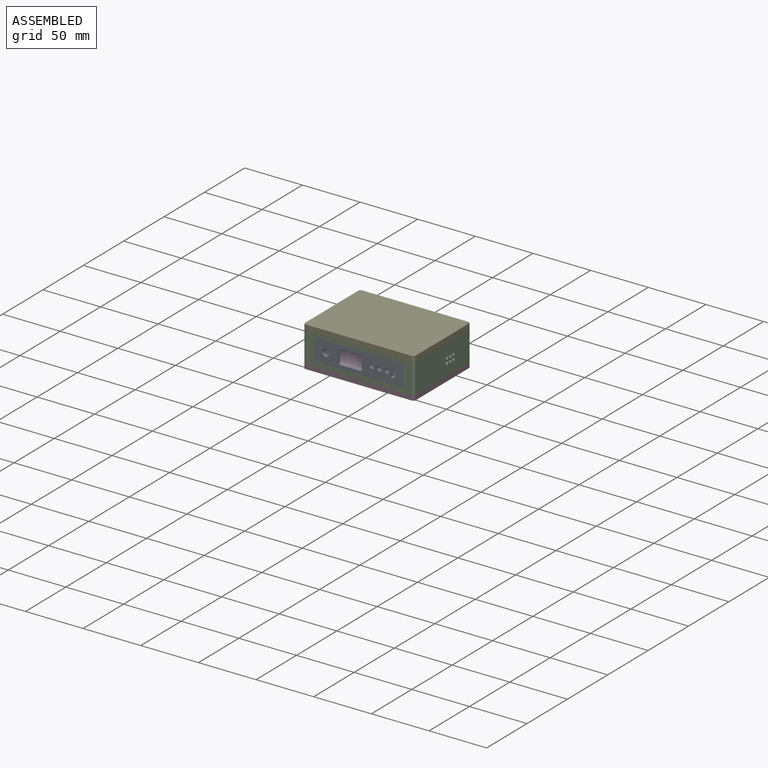
[diagram: assembled view]
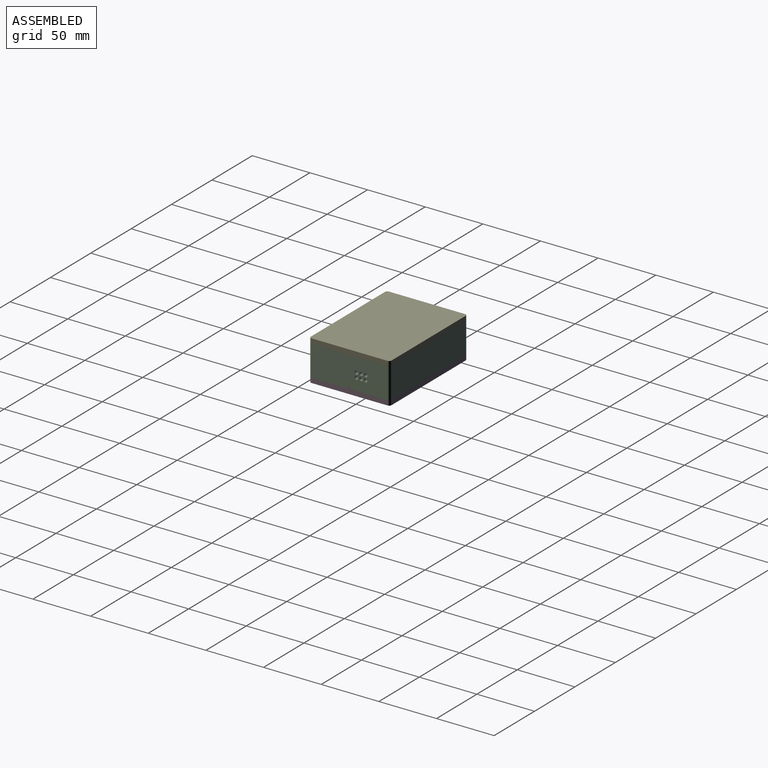
[diagram: assembled view, second angle]
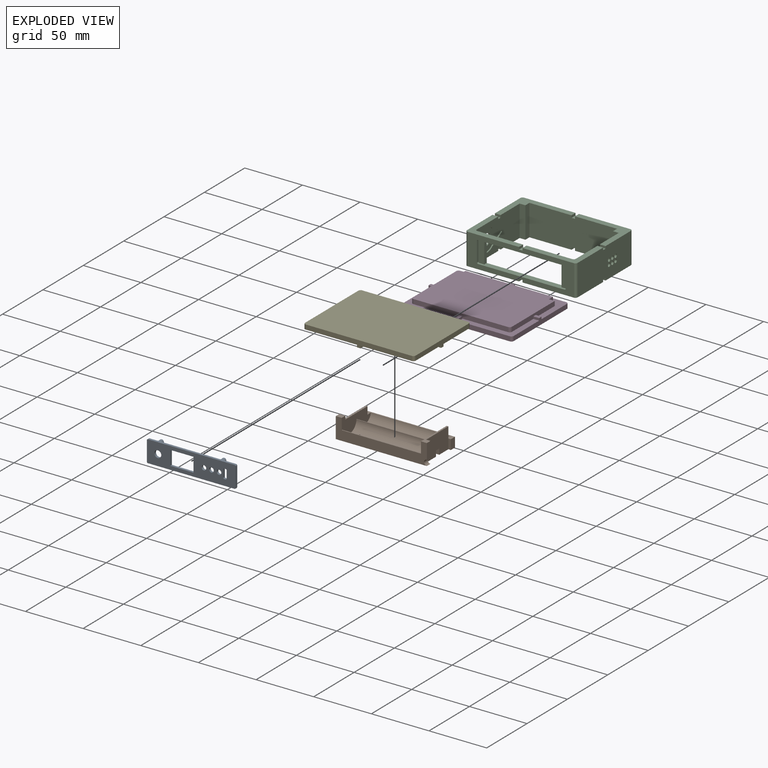
[diagram: exploded view]
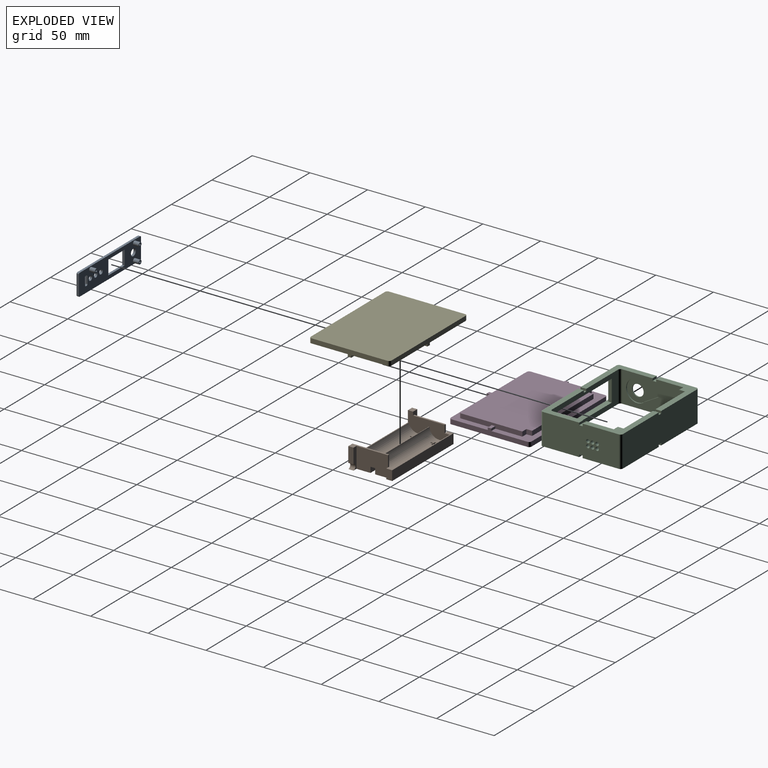
[diagram: exploded view, second angle]
ASSEMBLY  parts=5 mates=4
PART A: 38 faces, bbox 6.9x77x18.8 mm
  f0: plane 75x2mm, normal (0,0,-1), area 150mm2, adj f18,f19,f35,f36
  f1: plane 75x2mm, normal (0,0,1), area 150mm2, adj f18,f19,f34,f37
  f2: cylinder r=1mm len=2mm, axis (-1,0,0), area 3.1mm2, adj f3,f12,f18,f19
  f3: plane 2x1mm, normal (0,0,1), area 2mm2, adj f2,f4,f18,f19
  f4: cylinder r=1mm len=2mm, axis (-1,0,0), area 3.1mm2, adj f3,f5,f18,f19
  f5: plane 6.2x2mm, normal (0,1,0), area 12.4mm2, adj f4,f6,f18,f19
  f6: cylinder r=1mm len=2mm, axis (-1,0,0), area 3.1mm2, adj f5,f7,f18,f19
  f7: plane 2x1mm, normal (0,0,-1), area 2mm2, adj f6,f8,f18,f19
  f8: cylinder r=1mm len=2mm, axis (-1,0,0), area 3.1mm2, adj f7,f12,f18,f19
  f9: plane 12.47x2mm, normal (0,1,0), area 24.9mm2, adj f10,f13,f18,f19
  f10: plane 20.16x2mm, normal (0,0,-1), area 40.3mm2, adj f9,f11,f18,f19
  f11: plane 12.47x2mm, normal (0,-1,0), area 24.9mm2, adj f10,f13,f18,f19
  f12: plane 6.2x2mm, normal (0,-1,0), area 12.4mm2, adj f2,f8,f18,f19
  f13: plane 20.16x2mm, normal (0,0,1), area 40.3mm2, adj f9,f11,f18,f19
  f14: cylinder r=2mm len=4mm, axis (-1,0,0), area 25.1mm2, adj f18,f19
  f15: cylinder r=2mm len=4mm, axis (-1,0,0), area 25.1mm2, adj f18,f19
  f16: cylinder r=2mm len=4mm, axis (-1,0,0), area 25.1mm2, adj f18,f19
  f17: cylinder r=3mm len=6mm, axis (-1,0,0), area 37.7mm2, adj f18,f19
  f18: plane 77x18.75mm, normal (1,0,0), area 1071.2mm2, adj f0,f1,f2,f3,f4,f5,f6,f7
  f19: plane 77x18.75mm, normal (-1,0,0), area 1101.8mm2, adj f0,f1,f2,f3,f4,f5,f6,f7
  f20: cylinder r=0.8mm len=5.9mm, axis (-1,0,0), area 29.7mm2, adj f22,f30
  f21: cylinder r=1.8mm len=4.9mm, axis (-1,0,0), area 55.4mm2, adj f18,f22
  f22: plane 3.6x3.6mm, normal (1,0,0), area 8.2mm2, adj f20,f21
  f23: cylinder r=0.8mm len=5.9mm, axis (-1,0,0), area 29.7mm2, adj f25,f31
  f24: cylinder r=1.8mm len=4.9mm, axis (-1,0,0), area 55.4mm2, adj f18,f25
  f25: plane 3.6x3.6mm, normal (1,0,0), area 8.2mm2, adj f23,f24
  f26: cylinder r=0.8mm len=5.9mm, axis (-1,0,0), area 29.7mm2, adj f28,f29
  f27: cylinder r=1.8mm len=4.9mm, axis (-1,0,0), area 55.4mm2, adj f18,f28
  f28: plane 3.6x3.6mm, normal (1,0,0), area 8.2mm2, adj f26,f27
  f29: plane 1.6x1.6mm, normal (1,0,0), area 2mm2, adj f26
  f30: plane 1.6x1.6mm, normal (1,0,0), area 2mm2, adj f20
  f31: plane 1.6x1.6mm, normal (1,0,0), area 2mm2, adj f23
  f32: plane 16.75x2mm, normal (0,-1,0), area 33.5mm2, adj f18,f19,f36,f37
  f33: plane 16.75x2mm, normal (0,1,0), area 33.5mm2, adj f18,f19,f34,f35
  f34: cylinder r=1mm len=2mm, axis (-1,0,0), area 3.1mm2, adj f1,f18,f19,f33
  f35: cylinder r=1mm len=2mm, axis (1,0,0), area 3.1mm2, adj f0,f18,f19,f33
  f36: cylinder r=1mm len=2mm, axis (-1,0,0), area 3.1mm2, adj f0,f18,f19,f32
  f37: cylinder r=1mm len=2mm, axis (1,0,0), area 3.1mm2, adj f1,f18,f19,f32
PART B: 72 faces, bbox 37x79x18 mm
  f0: plane 18x4.5mm, normal (0,-1,0), area 81mm2, adj f4,f9,f66,f67
  f1: plane 71.66x4.86mm, normal (1,0,0), area 348.6mm2, adj f3,f18,f20,f68
  f2: plane 71.66x4.86mm, normal (-1,0,0), area 348.6mm2, adj f4,f18,f20,f68
  f3: plane 76x16.39mm, normal (0,0,-1), area 1178.3mm2, adj f1,f18,f20,f23,f38,f39,f40,f41
  f4: plane 79x16.61mm, normal (0,0,-1), area 1204.8mm2, adj f0,f2,f9,f18,f19,f20,f26,f27
  f5: plane 27.35x1.52mm, normal (0,0,1), area 41.6mm2, adj f6,f11,f20,f67
  f6: plane 36.27x16mm, normal (0,1,0), area 391mm2, adj f5,f9,f11,f12,f13,f15,f22,f58
  f7: plane 13.16x4.5mm, normal (0,1,0), area 59.2mm2, adj f9,f10,f19,f69
  f8: plane 36.27x16mm, normal (0,-1,0), area 473mm2, adj f9,f10,f12,f17,f22,f24,f25,f58
  f9: plane 79x18mm, normal (1,0,0), area 753.8mm2, adj f0,f4,f6,f7,f8,f10,f22,f66
  f10: plane 31.85x5.15mm, normal (0,0,1), area 62.6mm2, adj f7,f8,f9,f17,f18,f19
  f11: plane 6.6x1.52mm, normal (-1,0,0), area 10mm2, adj f5,f6,f20,f64
  f12: cylinder r=8.41mm len=68.7mm, axis (0,-1,0), area 762.9mm2, adj f6,f8,f15,f16,f21,f24,f38,f44
  f13: plane 6.84x1.01mm, normal (0,0,1), area 5.4mm2, adj f6,f26,f27,f28,f60,f61
  f14: plane 52.16x1.01mm, normal (0,0,1), area 51.2mm2, adj f30,f31,f32,f57,f60,f61
  f15: plane 4.93x1.01mm, normal (0,0,1), area 5mm2, adj f6,f12,f38,f59
  f16: plane 50.23x1.01mm, normal (0,0,1), area 50.8mm2, adj f12,f44,f53,f59
  f17: plane 9.6x1.44mm, normal (-1,0,0), area 13.8mm2, adj f8,f10,f18,f63
  f18: plane 27.35x18mm, normal (0,1,0), area 472.8mm2, adj f1,f2,f3,f4,f10,f17,f19,f62
  f19: plane 18x3.71mm, normal (-1,0,0), area 57.6mm2, adj f4,f7,f10,f18,f69
  f20: plane 27.35x15mm, normal (0,-1,0), area 390.8mm2, adj f1,f2,f3,f4,f5,f11,f65,f67
  f21: plane 76.02x0.75mm, normal (0,0,1), area 55.6mm2, adj f12,f23,f63,f64,f70,f71
  f22: plane 68.7x0.73mm, normal (0,0,1), area 50.3mm2, adj f6,f8,f9,f60
  f23: plane 76x8.41mm, normal (-1,0,0), area 639mm2, adj f3,f21,f70,f71
  f24: plane 6.57x1.01mm, normal (0,0,1), area 6.7mm2, adj f8,f12,f51,f59
  f25: plane 6.57x1.01mm, normal (0,0,1), area 6.7mm2, adj f8,f55,f60,f61
  f26: plane 2x1.08mm, normal (0,1,0), area 2.2mm2, adj f4,f13,f27,f37,f61
  f27: plane 2x1.9mm, normal (-1,0,0), area 3.8mm2, adj f4,f13,f26,f28
  f28: plane 2.18x1.91mm, normal (0,1,0), area 3.9mm2, adj f4,f13,f27,f29,f60
  f29: plane 2.18x1.08mm, normal (-1,0,0), area 2.4mm2, adj f4,f28,f30,f60
  f30: plane 2.18x1.91mm, normal (0,-1,0), area 3.9mm2, adj f4,f14,f29,f31,f60
  f31: plane 2x1.93mm, normal (-1,0,0), area 3.9mm2, adj f4,f14,f30,f32
  f32: plane 2x1.08mm, normal (0,-1,0), area 2.2mm2, adj f4,f14,f31,f33,f61
  f33: plane 2x1.93mm, normal (1,0,0), area 3.9mm2, adj f4,f32,f34,f61
  f34: plane 2.29x1.91mm, normal (0,-1,0), area 4mm2, adj f4,f33,f35,f61
  f35: plane 2.29x1.08mm, normal (1,0,0), area 2.5mm2, adj f4,f34,f36,f61
  f36: plane 2.29x1.91mm, normal (0,1,0), area 4mm2, adj f4,f35,f37,f61
  f37: plane 2x1.9mm, normal (1,0,0), area 3.8mm2, adj f4,f26,f36,f61
  f38: plane 2x1.08mm, normal (0,1,0), area 2.2mm2, adj f3,f12,f15,f39,f49,f59
  f39: plane 2x1.9mm, normal (-1,0,0), area 3.8mm2, adj f3,f38,f40,f59
  f40: plane 2.23x1.91mm, normal (0,1,0), area 4mm2, adj f3,f39,f41,f59
  f41: plane 2.23x1.08mm, normal (-1,0,0), area 2.4mm2, adj f3,f40,f42,f59
  f42: plane 2.23x1.91mm, normal (0,-1,0), area 4mm2, adj f3,f41,f43,f59
  f43: plane 2x1.93mm, normal (-1,0,0), area 3.9mm2, adj f3,f42,f44,f59
  f44: plane 2x1.08mm, normal (0,-1,0), area 2.2mm2, adj f3,f12,f16,f43,f45,f59
  f45: plane 2x1.93mm, normal (1,0,0), area 3.9mm2, adj f3,f12,f44,f46
  f46: plane 2.23x1.91mm, normal (0,-1,0), area 4mm2, adj f3,f12,f45,f47
  f47: plane 2.23x1.08mm, normal (1,0,0), area 2.4mm2, adj f3,f12,f46,f48
  f48: plane 2.23x1.91mm, normal (0,1,0), area 4mm2, adj f3,f12,f47,f49
  f49: plane 2x1.9mm, normal (1,0,0), area 3.8mm2, adj f3,f12,f38,f48
  f50: plane 2.18x2.05mm, normal (-1,0,0), area 4.5mm2, adj f3,f51,f53,f59
  f51: plane 4.41x2.18mm, normal (0,-1,0), area 9mm2, adj f3,f12,f24,f50,f52,f59
  f52: plane 2.17x2.05mm, normal (1,0,0), area 4.4mm2, adj f3,f12,f51,f53
  f53: plane 4.41x2.18mm, normal (0,1,0), area 9mm2, adj f3,f12,f16,f50,f52,f59
  f54: plane 2.15x2.05mm, normal (-1,0,0), area 4.4mm2, adj f4,f55,f57,f60
  f55: plane 4.41x2.2mm, normal (0,-1,0), area 9mm2, adj f4,f25,f54,f56,f60,f61
  f56: plane 2.2x2.05mm, normal (1,0,0), area 4.5mm2, adj f4,f55,f57,f61
  f57: plane 4.41x2.2mm, normal (0,1,0), area 9mm2, adj f4,f14,f54,f56,f60,f61
  f58: plane 68.7x0.38mm, normal (0,0,1), area 26.2mm2, adj f6,f8,f59,f61
  f59: cylinder r=8.41mm len=68.7mm, axis (0,-1,0), area 873.4mm2, adj f6,f8,f15,f16,f24,f38,f39,f40
  f60: cylinder r=8.41mm len=68.7mm, axis (0,-1,0), area 763.5mm2, adj f6,f8,f13,f14,f22,f25,f28,f29
  f61: cylinder r=8.41mm len=68.7mm, axis (0,-1,0), area 872.2mm2, adj f6,f8,f13,f14,f25,f26,f32,f33
  f62: plane 8.4x2.21mm, normal (1,0,0), area 18.6mm2, adj f3,f18,f63,f71
  f63: plane 4.43x3.67mm, normal (0,0,1), area 16.1mm2, adj f8,f17,f21,f62,f71
  f64: plane 4.43x3.67mm, normal (0,0,1), area 16.1mm2, adj f6,f11,f21,f65,f70
  f65: plane 8.4x2.13mm, normal (1,0,0), area 17.9mm2, adj f3,f20,f64,f70
  f66: plane 5.15x4.5mm, normal (0,0,1), area 23.2mm2, adj f0,f6,f9,f67
  f67: plane 18x5.15mm, normal (-1,0,0), area 69.9mm2, adj f0,f4,f5,f6,f20,f66
  f68: plane 71.66x4mm, normal (0,0,-1), area 286.6mm2, adj f1,f2,f18,f20
  f69: cylinder r=2.42mm len=4.84mm, axis (1,0,0), area 34.2mm2, adj f4,f7,f9,f19
  f70: plane 8.41x5.15mm, normal (0,-1,0), area 43.3mm2, adj f3,f21,f23,f64,f65
  f71: plane 8.41x5.15mm, normal (0,1,0), area 43.3mm2, adj f3,f21,f23,f62,f63
PART C: 75 faces, bbox 96x70x27 mm
  f0: plane 53x27mm, normal (1,0,0), area 1081.1mm2, adj f7,f10,f11,f17,f44,f45,f53,f54
  f1: cylinder r=5mm len=10mm, axis (-1,0,0), area 31.4mm2, adj f32,f74
  f2: plane 76x27mm, normal (0,-1,0), area 2040mm2, adj f5,f9,f10,f15,f16,f44,f47,f48
  f3: plane 66x27mm, normal (1,0,0), area 1727.6mm2, adj f5,f6,f8,f9,f21,f22,f25,f26
  f4: plane 92x27mm, normal (0,1,0), area 2472mm2, adj f5,f9,f10,f22,f23,f44,f47,f48
  f5: plane 46.5x33.5mm, normal (0,0,-1), area 399.1mm2, adj f2,f3,f4,f13,f14,f15,f22,f66
  f6: plane 46.5x33.5mm, normal (0,0,-1), area 375mm2, adj f3,f12,f13,f18,f21,f46,f62,f65
  f7: plane 46.5x33.5mm, normal (0,0,-1), area 375mm2, adj f0,f12,f18,f19,f20,f45,f59,f63
  f8: plane 46.5x33.5mm, normal (0,0,1), area 375mm2, adj f3,f12,f13,f18,f21,f46,f51,f56
  f9: plane 46.5x33.5mm, normal (0,0,1), area 399.1mm2, adj f2,f3,f4,f13,f14,f15,f22,f47
  f10: plane 46.5x33.5mm, normal (0,0,1), area 399.1mm2, adj f0,f2,f4,f16,f17,f19,f23,f48
  f11: plane 46.5x33.5mm, normal (0,0,1), area 375mm2, adj f0,f12,f18,f19,f20,f45,f54,f57
  f12: plane 82x27mm, normal (0,1,0), area 945.7mm2, adj f6,f7,f8,f11,f33,f37,f42,f43
  f13: plane 53x27mm, normal (-1,0,0), area 1376.6mm2, adj f5,f6,f8,f9,f14,f25,f26,f27
  f14: plane 27x5mm, normal (0,-1,0), area 135mm2, adj f5,f9,f13,f15
  f15: plane 27x5mm, normal (-1,0,0), area 135mm2, adj f2,f5,f9,f14
  f16: plane 27x5mm, normal (1,0,0), area 135mm2, adj f2,f10,f17,f44
  f17: plane 27x5mm, normal (0,-1,0), area 135mm2, adj f0,f10,f16,f44
  f18: plane 92x27mm, normal (0,-1,0), area 1029.1mm2, adj f6,f7,f8,f11,f20,f21,f33,f34
  f19: plane 66x27mm, normal (-1,0,0), area 1372.4mm2, adj f7,f10,f11,f20,f23,f31,f44,f53
  f20: cylinder r=2mm len=27mm, axis (0,0,-1), area 84.8mm2, adj f7,f11,f18,f19
  f21: cylinder r=2mm len=27mm, axis (0,0,-1), area 84.8mm2, adj f3,f6,f8,f18
  f22: cylinder r=2mm len=27mm, axis (0,0,-1), area 84.8mm2, adj f3,f4,f5,f9
  f23: cylinder r=2mm len=27mm, axis (0,0,-1), area 84.8mm2, adj f4,f10,f19,f44
  f24: plane 18.75x5mm, normal (0,-1,0), area 93.3mm2, adj f33,f34,f35,f36,f37,f43
  f25: cylinder r=1.5mm len=5mm, axis (1,0,0), area 47.1mm2, adj f3,f13
  f26: cylinder r=1.5mm len=5mm, axis (1,0,0), area 47.1mm2, adj f3,f13
  f27: cylinder r=1.5mm len=5mm, axis (1,0,0), area 47.1mm2, adj f3,f13
  f28: cylinder r=1.5mm len=5mm, axis (1,0,0), area 47.1mm2, adj f3,f13
  f29: cylinder r=1.5mm len=5mm, axis (1,0,0), area 47.1mm2, adj f3,f13
  f30: cylinder r=1.5mm len=5mm, axis (1,0,0), area 47.1mm2, adj f3,f13
  f31: cylinder r=11.25mm len=22.5mm, axis (-1,0,0), area 212.1mm2, adj f19,f32
  f32: plane 22.5x22.5mm, normal (-1,0,0), area 319.1mm2, adj f1,f31
  f33: plane 75x5mm, normal (0,0,1), area 351mm2, adj f12,f18,f24,f34,f40,f41,f42,f43
  f34: cylinder r=1mm len=2mm, axis (0,-1,0), area 3.1mm2, adj f18,f24,f33,f35
  f35: plane 16.75x2mm, normal (-1,0,0), area 33.5mm2, adj f18,f24,f34,f36
  f36: cylinder r=1mm len=2mm, axis (0,-1,0), area 3.1mm2, adj f18,f24,f35,f37
  f37: plane 75x5mm, normal (0,0,-1), area 351mm2, adj f12,f18,f24,f36,f38,f41,f42,f43
  f38: cylinder r=1mm len=2mm, axis (0,-1,0), area 3.1mm2, adj f18,f37,f39,f41
  f39: plane 16.75x2mm, normal (1,0,0), area 33.5mm2, adj f18,f38,f40,f41
  f40: cylinder r=1mm len=2mm, axis (0,-1,0), area 3.1mm2, adj f18,f33,f39,f41
  f41: plane 18.75x5mm, normal (0,-1,0), area 93.3mm2, adj f33,f37,f38,f39,f40,f42
  f42: plane 18.75x3mm, normal (1,0,0), area 56.3mm2, adj f12,f33,f37,f41
  f43: plane 18.75x3mm, normal (-1,0,0), area 56.3mm2, adj f12,f24,f33,f37
  f44: plane 46.5x33.5mm, normal (0,0,-1), area 399.1mm2, adj f0,f2,f4,f16,f17,f19,f23,f60
  f45: cylinder r=2mm len=27mm, axis (0,0,1), area 84.8mm2, adj f0,f7,f11,f12
  f46: cylinder r=2mm len=27mm, axis (0,0,-1), area 84.8mm2, adj f6,f8,f12,f13
  f47: plane 5x2mm, normal (-1,0,0), area 10mm2, adj f2,f4,f9,f49
  f48: plane 5x2mm, normal (1,0,0), area 10mm2, adj f2,f4,f10,f49
  f49: plane 5x3mm, normal (0,0,1), area 15mm2, adj f2,f4,f47,f48
  f50: plane 5x2mm, normal (0,-1,0), area 10mm2, adj f3,f9,f13,f52
  f51: plane 5x2mm, normal (0,1,0), area 10mm2, adj f3,f8,f13,f52
  f52: plane 5x3mm, normal (0,0,1), area 15mm2, adj f3,f13,f50,f51
  f53: plane 5x2mm, normal (0,-1,0), area 10mm2, adj f0,f10,f19,f55
  f54: plane 5x2mm, normal (0,1,0), area 10mm2, adj f0,f11,f19,f55
  f55: plane 5x3mm, normal (0,0,1), area 15mm2, adj f0,f19,f53,f54
  f56: plane 5x2mm, normal (-1,0,0), area 10mm2, adj f8,f12,f18,f58
  f57: plane 5x2mm, normal (1,0,0), area 10mm2, adj f11,f12,f18,f58
  f58: plane 5x3mm, normal (0,0,1), area 15mm2, adj f12,f18,f56,f57
  f59: plane 5x2mm, normal (0,1,0), area 10mm2, adj f0,f7,f19,f61
  f60: plane 5x2mm, normal (0,-1,0), area 10mm2, adj f0,f19,f44,f61
  f61: plane 5x3mm, normal (0,0,-1), area 15mm2, adj f0,f19,f59,f60
  f62: plane 5x2mm, normal (-1,0,0), area 10mm2, adj f6,f12,f18,f64
  f63: plane 5x2mm, normal (1,0,0), area 10mm2, adj f7,f12,f18,f64
  f64: plane 5x3mm, normal (0,0,-1), area 15mm2, adj f12,f18,f62,f63
  f65: plane 5x2mm, normal (0,1,0), area 10mm2, adj f3,f6,f13,f67
  f66: plane 5x2mm, normal (0,-1,0), area 10mm2, adj f3,f5,f13,f67
  f67: plane 5x3mm, normal (0,0,-1), area 15mm2, adj f3,f13,f65,f66
  f68: plane 5x2mm, normal (-1,0,0), area 10mm2, adj f2,f4,f5,f70
  f69: plane 5x2mm, normal (1,0,0), area 10mm2, adj f2,f4,f44,f70
  f70: plane 5x3mm, normal (0,0,-1), area 15mm2, adj f2,f4,f68,f69
  f71: plane 12x6.93mm, normal (0,-0.5,-0.87), area 13.9mm2, adj f0,f72,f73,f74
  f72: cylinder r=9.5mm len=19mm, axis (1,0,0), area 44.2mm2, adj f0,f71,f73,f74
  f73: plane 12x6.93mm, normal (0,-0.5,0.87), area 13.9mm2, adj f0,f71,f72,f74
  f74: plane 28x19mm, normal (1,0,0), area 259.4mm2, adj f1,f71,f72,f73
PART D: 36 faces, bbox 96x70x8 mm
  f0: plane 46.5x33.5mm, normal (0,0,1), area 375mm2, adj f6,f12,f13,f16,f17,f18,f25,f33
  f1: plane 46.5x33.5mm, normal (0,0,1), area 375mm2, adj f2,f10,f11,f12,f15,f16,f31,f34
  f2: plane 53x4mm, normal (1,0,0), area 206mm2, adj f1,f3,f15,f22,f23,f30,f31,f32
  f3: plane 46.5x33.5mm, normal (0,0,1), area 399.1mm2, adj f2,f4,f8,f9,f10,f21,f22,f28
  f4: plane 76x4mm, normal (0,-1,0), area 298mm2, adj f3,f5,f20,f21,f23,f27,f28,f29
  f5: plane 46.5x33.5mm, normal (0,0,1), area 399.1mm2, adj f4,f6,f7,f8,f18,f19,f20,f24
  f6: plane 66x6mm, normal (-1,0,0), area 270mm2, adj f0,f5,f7,f13,f14,f24,f25,f26
  f7: cylinder r=2mm len=4mm, axis (0,0,-1), area 12.6mm2, adj f5,f6,f8,f14
  f8: plane 92x6mm, normal (0,-1,0), area 374mm2, adj f3,f5,f7,f9,f14,f27,f28,f29
  f9: cylinder r=2mm len=4mm, axis (0,0,-1), area 12.6mm2, adj f3,f8,f10,f14
  f10: plane 66x6mm, normal (1,0,0), area 270mm2, adj f1,f3,f9,f11,f14,f30,f31,f32
  f11: cylinder r=2mm len=4mm, axis (0,0,-1), area 12.6mm2, adj f1,f10,f12,f14
  f12: plane 92x6mm, normal (0,1,0), area 374mm2, adj f0,f1,f11,f13,f14,f33,f34,f35
  f13: cylinder r=2mm len=4mm, axis (0,0,-1), area 12.6mm2, adj f0,f6,f12,f14
  f14: plane 96x70mm, normal (0,0,-1), area 6716.6mm2, adj f6,f7,f8,f9,f10,f11,f12,f13
  f15: cylinder r=2mm len=4mm, axis (0,0,-1), area 12.6mm2, adj f1,f2,f16,f23
  f16: plane 82x4mm, normal (0,1,0), area 322mm2, adj f0,f1,f15,f17,f23,f33,f34,f35
  f17: cylinder r=2mm len=4mm, axis (0,0,-1), area 12.6mm2, adj f0,f16,f18,f23
  f18: plane 53x4mm, normal (-1,0,0), area 206mm2, adj f0,f5,f17,f19,f23,f24,f25,f26
  f19: plane 5x4mm, normal (0,-1,0), area 20mm2, adj f5,f18,f20,f23
  f20: plane 5x4mm, normal (-1,0,0), area 20mm2, adj f4,f5,f19,f23
  f21: plane 5x4mm, normal (1,0,0), area 20mm2, adj f3,f4,f22,f23
  f22: plane 5x4mm, normal (0,-1,0), area 20mm2, adj f2,f3,f21,f23
  f23: plane 86x60mm, normal (0,0,1), area 5108.3mm2, adj f2,f4,f15,f16,f17,f18,f19,f20
  f24: plane 5x2mm, normal (0,-1,0), area 10mm2, adj f5,f6,f18,f26
  f25: plane 5x2mm, normal (0,1,0), area 10mm2, adj f0,f6,f18,f26
  f26: plane 5x3mm, normal (0,0,1), area 15mm2, adj f6,f18,f24,f25
  f27: plane 5x2mm, normal (-1,0,0), area 10mm2, adj f4,f5,f8,f29
  f28: plane 5x2mm, normal (1,0,0), area 10mm2, adj f3,f4,f8,f29
  f29: plane 5x3mm, normal (0,0,1), area 15mm2, adj f4,f8,f27,f28
  f30: plane 5x2mm, normal (0,-1,0), area 10mm2, adj f2,f3,f10,f32
  f31: plane 5x2mm, normal (0,1,0), area 10mm2, adj f1,f2,f10,f32
  f32: plane 5x3mm, normal (0,0,1), area 15mm2, adj f2,f10,f30,f31
  f33: plane 5x2mm, normal (-1,0,0), area 10mm2, adj f0,f12,f16,f35
  f34: plane 5x2mm, normal (1,0,0), area 10mm2, adj f1,f12,f16,f35
  f35: plane 5x3mm, normal (0,0,1), area 15mm2, adj f12,f16,f33,f34
PART E: 36 faces, bbox 96x70x6 mm
  f0: plane 46.5x33.5mm, normal (0,0,1), area 399.1mm2, adj f3,f4,f5,f25,f26,f27,f28,f29
  f1: plane 46.5x33.5mm, normal (0,0,1), area 375mm2, adj f3,f9,f10,f20,f21,f22,f23,f24
  f2: plane 46.5x33.5mm, normal (0,0,1), area 400.7mm2, adj f5,f6,f7,f13,f14,f31,f32,f33
  f3: plane 66x6mm, normal (-1,0,0), area 270mm2, adj f0,f1,f4,f10,f12,f24,f25,f35
  f4: cylinder r=2mm len=4mm, axis (0,0,-1), area 12.6mm2, adj f0,f3,f5,f12
  f5: plane 92x6mm, normal (0,-1,0), area 374mm2, adj f0,f2,f4,f6,f12,f30,f31,f35
  f6: cylinder r=2mm len=4mm, axis (0,0,-1), area 12.6mm2, adj f2,f5,f7,f12
  f7: plane 66x6mm, normal (1,0,0), area 270mm2, adj f2,f6,f8,f11,f12,f14,f15,f35
  f8: cylinder r=2mm len=4mm, axis (0,0,-1), area 12.6mm2, adj f7,f9,f11,f12
  f9: plane 92x6mm, normal (0,1,0), area 374mm2, adj f1,f8,f10,f11,f12,f19,f20,f35
  f10: cylinder r=2mm len=4mm, axis (0,0,-1), area 12.6mm2, adj f1,f3,f9,f12
  f11: plane 46.5x33.5mm, normal (0,0,1), area 375mm2, adj f7,f8,f9,f15,f16,f17,f18,f19
  f12: plane 96x70mm, normal (0,0,-1), area 6716.6mm2, adj f3,f4,f5,f6,f7,f8,f9,f10
  f13: plane 23.5x2mm, normal (1,0,0), area 47mm2, adj f2,f14,f34,f35
  f14: plane 5x2mm, normal (0,-1,0), area 10mm2, adj f2,f7,f13,f35
  f15: plane 5x2mm, normal (0,1,0), area 10mm2, adj f7,f11,f16,f35
  f16: plane 26.5x2mm, normal (1,0,0), area 53mm2, adj f11,f15,f17,f35
  f17: cylinder r=2mm len=2mm, axis (0,0,-1), area 6.3mm2, adj f11,f16,f18,f35
  f18: plane 39.5x2mm, normal (0,1,0), area 79mm2, adj f11,f17,f19,f35
  f19: plane 5x2mm, normal (1,0,0), area 10mm2, adj f9,f11,f18,f35
  f20: plane 5x2mm, normal (-1,0,0), area 10mm2, adj f1,f9,f21,f35
  f21: plane 39.5x2mm, normal (0,1,0), area 79mm2, adj f1,f20,f22,f35
  f22: cylinder r=2mm len=2mm, axis (0,0,-1), area 6.3mm2, adj f1,f21,f23,f35
  f23: plane 26.5x2mm, normal (-1,0,0), area 53mm2, adj f1,f22,f24,f35
  f24: plane 5x2mm, normal (0,1,0), area 10mm2, adj f1,f3,f23,f35
  f25: plane 5x2mm, normal (0,-1,0), area 10mm2, adj f0,f3,f26,f35
  f26: plane 23.5x2mm, normal (-1,0,0), area 47mm2, adj f0,f25,f27,f35
  f27: plane 5x2mm, normal (0,-1,0), area 10mm2, adj f0,f26,f28,f35
  f28: plane 5x2mm, normal (-1,0,0), area 10mm2, adj f0,f27,f29,f35
  f29: plane 36.5x2mm, normal (0,-1,0), area 73mm2, adj f0,f28,f30,f35
  f30: plane 5x2mm, normal (-1,0,0), area 10mm2, adj f0,f5,f29,f35
  f31: plane 5x2mm, normal (1,0,0), area 10mm2, adj f2,f5,f32,f35
  f32: plane 36.19x2mm, normal (0,-1,0), area 72.4mm2, adj f2,f31,f33,f35
  f33: plane 5x2mm, normal (1,0,0), area 10mm2, adj f2,f32,f34,f35
  f34: plane 5.31x2mm, normal (0,-1,0), area 10.6mm2, adj f2,f13,f33,f35
  f35: plane 96x70mm, normal (0,0,1), area 5166.7mm2, adj f3,f5,f7,f9,f13,f14,f15,f16
PLACE A rot(axis=(0,0,1),90deg) t=(13.81,-17.52,21.16)mm
PLACE B rot(axis=(0,0,-1),90deg) t=(44.45,28.9,11.31)mm
PLACE C t=(6.24,17.48,6.74)mm
PLACE D rot(axis=(0,0,1),180deg) t=(6.24,17.48,-22.69)mm
PLACE E rot(axis=(1,0,0),180deg) t=(6.24,17.48,64.31)mm
MATE slider D.f5 <-> C.f5  axis (0,0,1) through (44.24,42.48,7.31)mm
MATE fastened B.f3 <-> D.f23  axis (0,0,-1) through (6.24,47.48,11.31)mm
MATE fastened A.f18 <-> C.f41  axis (0,1,0) through (-31.81,-15.52,20.81)mm
MATE slider E.f35 <-> C.f55  axis (0,0,-1) through (-41.76,17.48,32.31)mm
